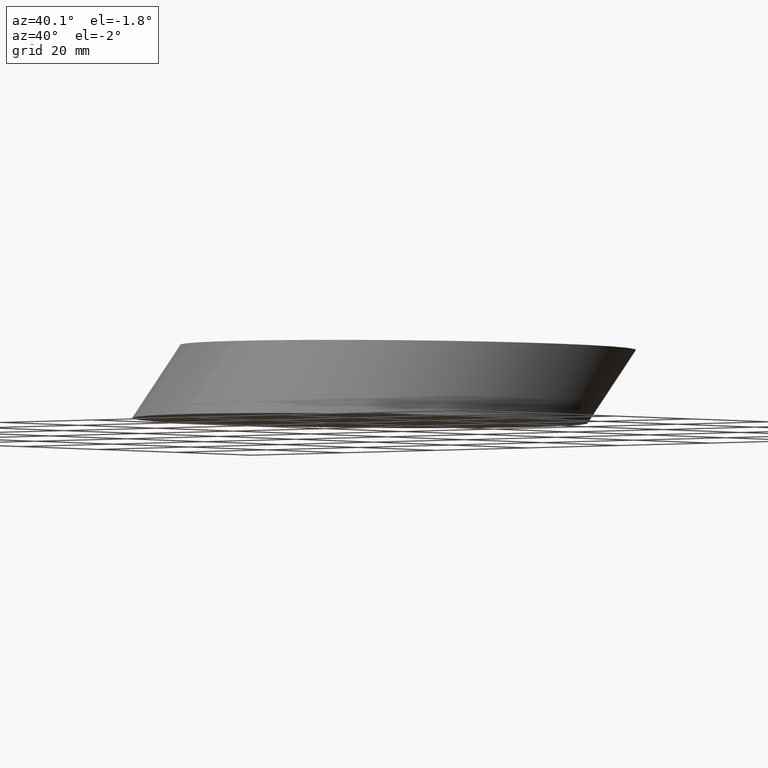
[diagram: clean part render]
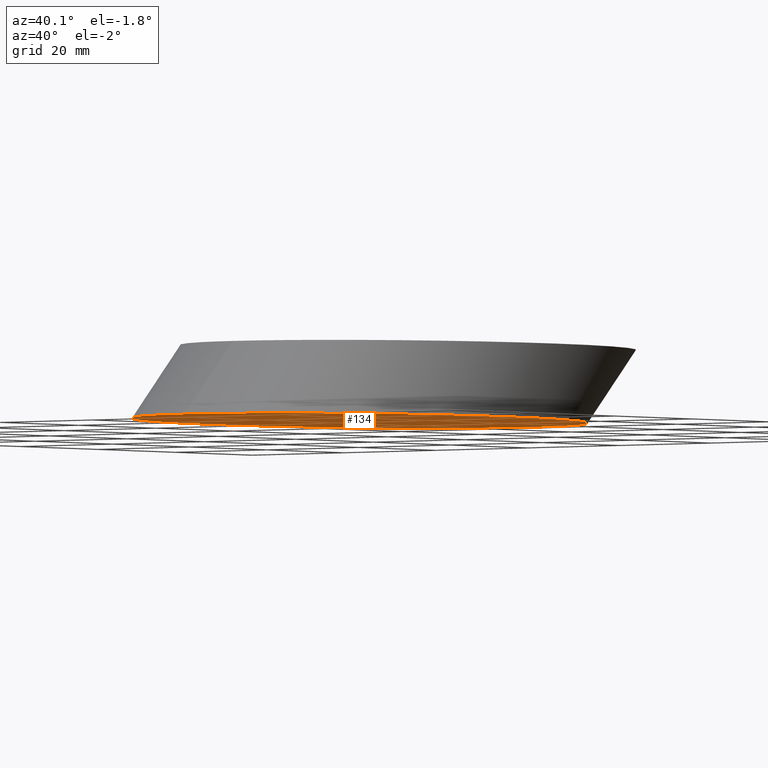
[diagram: same view with one face highlighted and labeled with its STEP entity id]
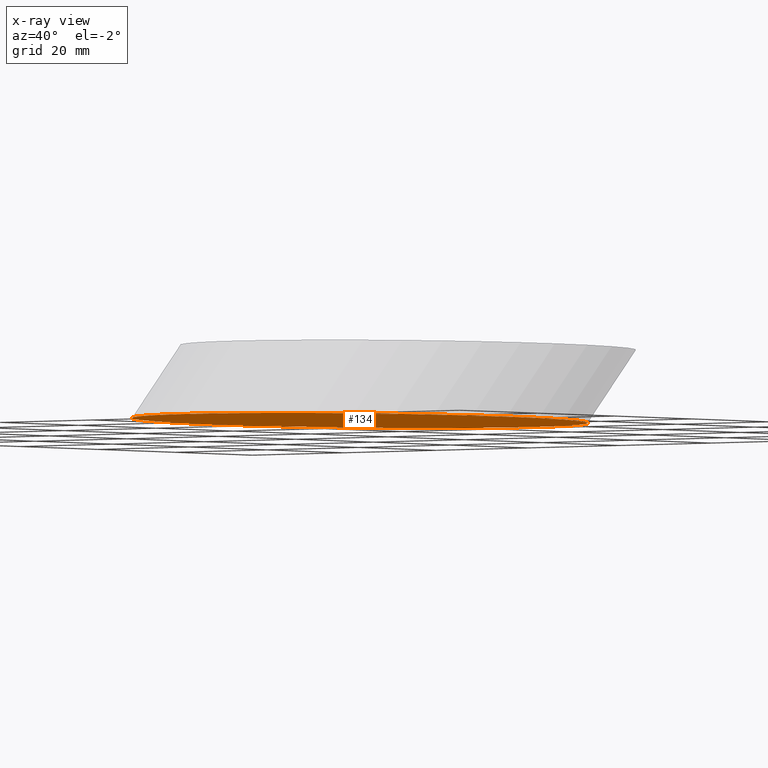
[diagram: x-ray of the same camera — body ghosted, the highlighted face saturated]
A machine part, auxiliary view. The second image highlights one B-rep face of the part: STEP entity #134.
The next image is the same camera in x-ray: the body ghosted, the highlighted face saturated — about 0% of this face is hidden behind the body in this view.
In plain terms, the highlighted planar face has unit normal (0, 0, 1).
Its self-contained STEP definition (entity closure, byte-faithful):
#5 = CARTESIAN_POINT ( 'NONE',  ( -9.607617018283935600, 81.04887153032210300, 0.0000000000000000000 ) ) ;
#10 = VERTEX_POINT ( 'NONE', #103 ) ;
#13 = FACE_OUTER_BOUND ( 'NONE', #20, .T. ) ;
#20 = EDGE_LOOP ( 'NONE', ( #62, #61 ) ) ;
#21 = PLANE ( 'NONE',  #69 ) ;
#29 = EDGE_CURVE ( 'NONE', #10, #92, #91, .T. ) ;
#32 = CARTESIAN_POINT ( 'NONE',  ( 54.39238298171605400, 81.04887153032210300, 0.0000000000000000000 ) ) ;
#38 = CARTESIAN_POINT ( 'NONE',  ( 54.39238298171605400, 81.04887153032210300, 0.0000000000000000000 ) ) ;
#40 = CARTESIAN_POINT ( 'NONE',  ( 54.39238298171605400, 81.04887153032210300, 0.0000000000000000000 ) ) ;
#42 = CARTESIAN_POINT ( 'NONE',  ( 54.39238298171604700, -9.471128469677889700, 0.0000000000000000000 ) ) ;
#47 =( BOUNDED_CURVE ( )  B_SPLINE_CURVE ( 3, ( #40, #5, #67, #42 ),
 .UNSPECIFIED., .F., .F. ) 
 B_SPLINE_CURVE_WITH_KNOTS ( ( 4, 4 ),
 ( 0.0000000000000000000, 3.141592653589793100 ),
 .UNSPECIFIED. ) 
 CURVE ( )  GEOMETRIC_REPRESENTATION_ITEM ( )  RATIONAL_B_SPLINE_CURVE ( ( 1.000000000000000000, 0.3333333333333333700, 0.3333333333333333700, 1.000000000000000000 ) ) 
 REPRESENTATION_ITEM ( '' )  );
#61 = ORIENTED_EDGE ( 'NONE', *, *, #29, .F. ) ;
#62 = ORIENTED_EDGE ( 'NONE', *, *, #139, .F. ) ;
#67 = CARTESIAN_POINT ( 'NONE',  ( -9.607617018283940900, -9.471128469677877200, 0.0000000000000000000 ) ) ;
#69 = AXIS2_PLACEMENT_3D ( 'NONE', #131, #129, #105 ) ;
#71 = CARTESIAN_POINT ( 'NONE',  ( 54.39238298171604700, -9.471128469677889700, 0.0000000000000000000 ) ) ;
#83 = CARTESIAN_POINT ( 'NONE',  ( 118.3923829817160300, -9.471128469677898600, 0.0000000000000000000 ) ) ;
#91 =( BOUNDED_CURVE ( )  B_SPLINE_CURVE ( 3, ( #71, #83, #138, #32 ),
 .UNSPECIFIED., .F., .T. ) 
 B_SPLINE_CURVE_WITH_KNOTS ( ( 4, 4 ),
 ( 3.141592653589793100, 6.283185307179586200 ),
 .UNSPECIFIED. ) 
 CURVE ( )  GEOMETRIC_REPRESENTATION_ITEM ( )  RATIONAL_B_SPLINE_CURVE ( ( 1.000000000000000000, 0.3333333333333333700, 0.3333333333333333700, 1.000000000000000000 ) ) 
 REPRESENTATION_ITEM ( '' )  );
#92 = VERTEX_POINT ( 'NONE', #38 ) ;
#103 = CARTESIAN_POINT ( 'NONE',  ( 54.39238298171604700, -9.471128469677889700, 0.0000000000000000000 ) ) ;
#105 = DIRECTION ( 'NONE',  ( 1.000000000000000000, 0.0000000000000000000, -0.0000000000000000000 ) ) ;
#129 = DIRECTION ( 'NONE',  ( 0.0000000000000000000, 0.0000000000000000000, 1.000000000000000000 ) ) ;
#131 = CARTESIAN_POINT ( 'NONE',  ( 54.39238298171605400, 35.78887153032210500, 0.0000000000000000000 ) ) ;
#134 = ADVANCED_FACE ( 'NONE', ( #13 ), #21, .F. ) ;
#138 = CARTESIAN_POINT ( 'NONE',  ( 118.3923829817160300, 81.04887153032210300, 0.0000000000000000000 ) ) ;
#139 = EDGE_CURVE ( 'NONE', #92, #10, #47, .T. ) ;